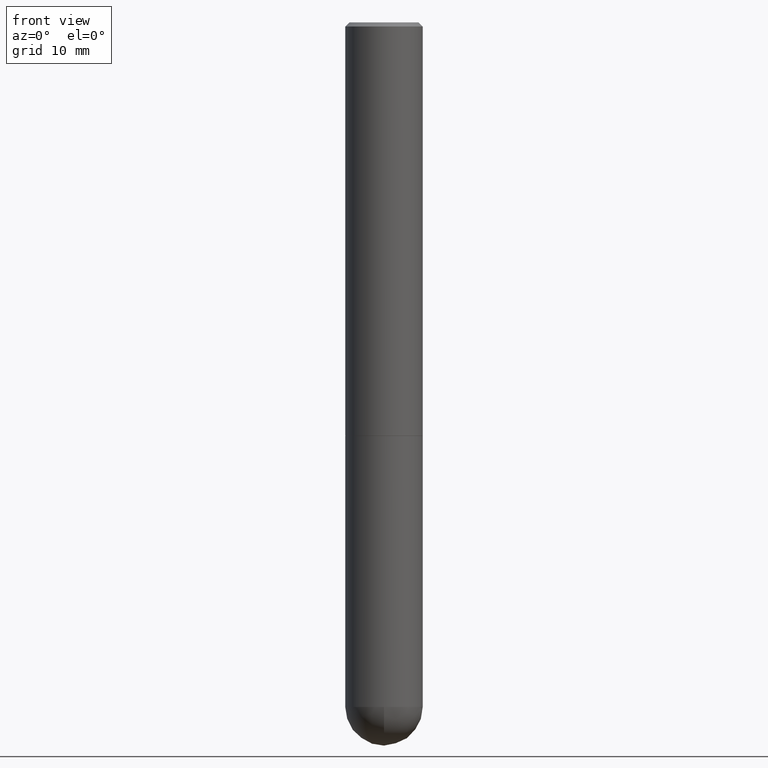
[diagram: clean part render]
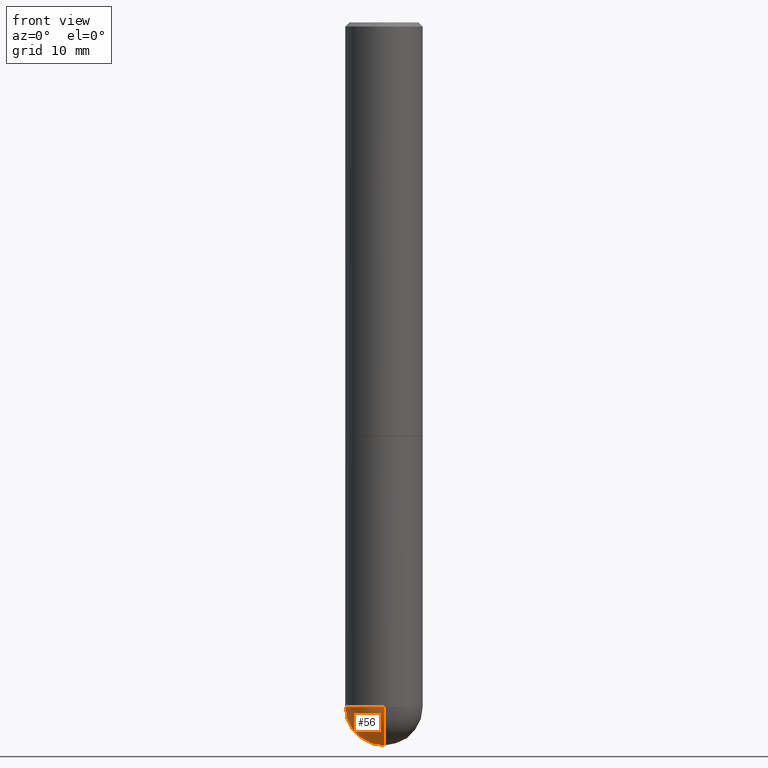
[diagram: same view with one face highlighted and labeled with its STEP entity id]
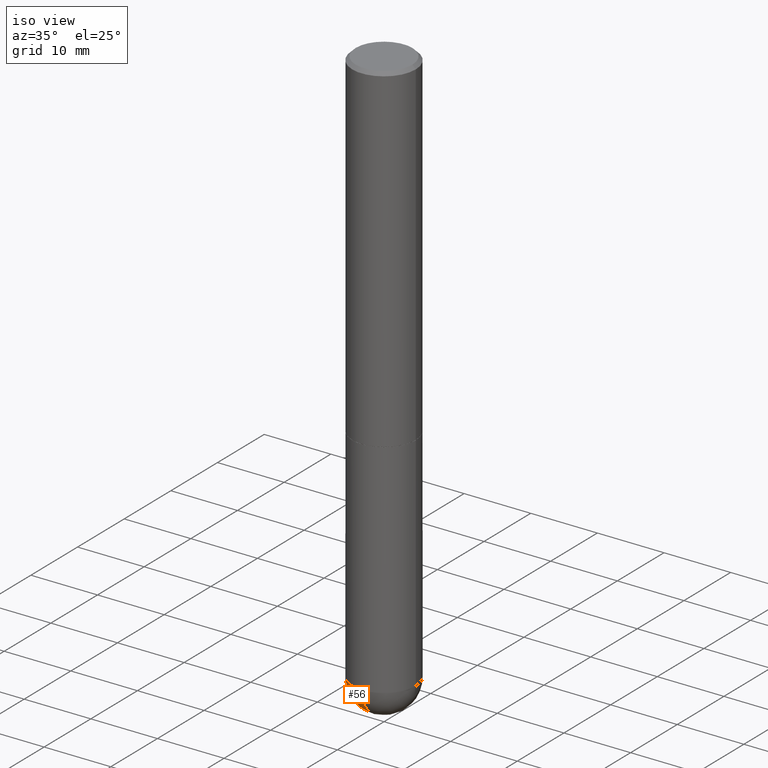
[diagram: same view with one face highlighted and labeled with its STEP entity id]
A machine part, front view. The second image highlights one B-rep face of the part: STEP entity #56.
A second angle (iso view) of the same face is appended — the face is thin or edge-on in the first view.
In plain terms, the highlighted spherical surface has radius 4.7625 mm.
Its self-contained STEP definition (entity closure, byte-faithful):
#8 = EDGE_CURVE ( 'NONE', #270, #154, #108, .T. ) ;
#14 = CARTESIAN_POINT ( 'NONE',  ( 7.769495642574377609E-29, -1.203971430305797135E-14, -3.312499999999999556 ) ) ;
#23 = AXIS2_PLACEMENT_3D ( 'NONE', #14, #249, #365 ) ;
#47 = CIRCLE ( 'NONE', #282, 0.1874999999999999722 ) ;
#51 = ORIENTED_EDGE ( 'NONE', *, *, #8, .F. ) ;
#56 = ADVANCED_FACE ( 'NONE', ( #361 ), #110, .T. ) ;
#76 = DIRECTION ( 'NONE',  ( -7.105427357601001070E-15, -1.000000000000000000, 0.000000000000000000 ) ) ;
#78 = CARTESIAN_POINT ( 'NONE',  ( 7.769495642574377609E-29, -1.203971430305797135E-14, -3.312499999999999556 ) ) ;
#94 = CARTESIAN_POINT ( 'NONE',  ( 1.309305502066255275E-15, 0.1874999999999883149, -3.312500000000000444 ) ) ;
#95 = DIRECTION ( 'NONE',  ( -2.445468806185136597E-29, 3.491481338843145583E-15, 1.000000000000000000 ) ) ;
#102 = AXIS2_PLACEMENT_3D ( 'NONE', #394, #95, #383 ) ;
#105 = CARTESIAN_POINT ( 'NONE',  ( 8.100615420488263856E-29, -1.156553193491791947E-14, -3.312499999999999556 ) ) ;
#108 = CIRCLE ( 'NONE', #247, 0.1875000000000002776 ) ;
#110 = SPHERICAL_SURFACE ( 'NONE', #23, 0.1875000000000002776 ) ;
#112 = CARTESIAN_POINT ( 'NONE',  ( 8.236038227695147558E-29, -1.268288599034905401E-14, -3.500000000000000000 ) ) ;
#141 = CARTESIAN_POINT ( 'NONE',  ( -1.332267629550109160E-15, -0.1875000000000119349, -3.312499999999999112 ) ) ;
#154 = VERTEX_POINT ( 'NONE', #94 ) ;
#163 = VERTEX_POINT ( 'NONE', #263 ) ;
#167 = CARTESIAN_POINT ( 'NONE',  ( 7.769495642574377609E-29, -1.203971430305797135E-14, -3.312499999999999556 ) ) ;
#192 = ORIENTED_EDGE ( 'NONE', *, *, #393, .F. ) ;
#214 = VERTEX_POINT ( 'NONE', #141 ) ;
#215 = DIRECTION ( 'NONE',  ( 1.000000000000000000, -6.982962677686263555E-15, 0.000000000000000000 ) ) ;
#224 = CIRCLE ( 'NONE', #102, 0.1874999999999999722 ) ;
#238 = EDGE_CURVE ( 'NONE', #270, #214, #346, .T. ) ;
#247 = AXIS2_PLACEMENT_3D ( 'NONE', #167, #287, #403 ) ;
#249 = DIRECTION ( 'NONE',  ( -1.000000000000000000, 6.982962677686266711E-15, -4.883557194083112340E-29 ) ) ;
#263 = CARTESIAN_POINT ( 'NONE',  ( -0.1874999999999999722, -7.941979676751917864E-15, -3.312499999999999556 ) ) ;
#266 = ORIENTED_EDGE ( 'NONE', *, *, #342, .F. ) ;
#270 = VERTEX_POINT ( 'NONE', #112 ) ;
#282 = AXIS2_PLACEMENT_3D ( 'NONE', #105, #360, #215 ) ;
#287 = DIRECTION ( 'NONE',  ( 1.000000000000000000, -6.982962677686265922E-15, 4.883557194083112340E-29 ) ) ;
#329 = ORIENTED_EDGE ( 'NONE', *, *, #238, .T. ) ;
#342 = EDGE_CURVE ( 'NONE', #154, #163, #47, .T. ) ;
#344 = EDGE_LOOP ( 'NONE', ( #51, #329, #192, #266 ) ) ;
#346 = CIRCLE ( 'NONE', #395, 0.1875000000000002776 ) ;
#360 = DIRECTION ( 'NONE',  ( -2.445468806185136597E-29, 3.491481338843145583E-15, 1.000000000000000000 ) ) ;
#361 = FACE_OUTER_BOUND ( 'NONE', #344, .T. ) ;
#363 = DIRECTION ( 'NONE',  ( -1.000000000000000000, 7.105427357601001070E-15, -4.926315508542082329E-29 ) ) ;
#365 = DIRECTION ( 'NONE',  ( 6.982962677686266711E-15, 1.000000000000000000, -2.913971193241876428E-15 ) ) ;
#383 = DIRECTION ( 'NONE',  ( 1.000000000000000000, -6.982962677686263555E-15, 0.000000000000000000 ) ) ;
#393 = EDGE_CURVE ( 'NONE', #163, #214, #224, .T. ) ;
#394 = CARTESIAN_POINT ( 'NONE',  ( 8.100615420488263856E-29, -1.156553193491791947E-14, -3.312499999999999556 ) ) ;
#395 = AXIS2_PLACEMENT_3D ( 'NONE', #78, #363, #76 ) ;
#403 = DIRECTION ( 'NONE',  ( 6.982962677686266711E-15, 1.000000000000000000, 0.000000000000000000 ) ) ;